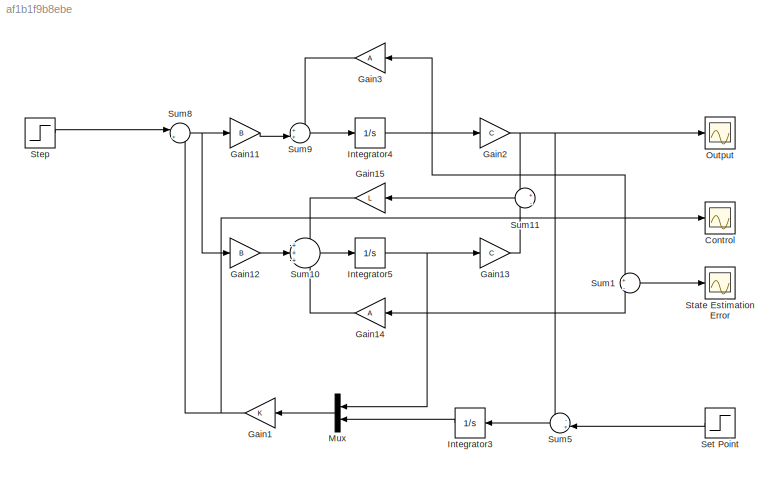
MODEL slx_af1b1f9b8ebe
KIND model
CONFIG AbsTol = auto
CONFIG EnableMultiTasking = off
CONFIG FixedStep = auto
CONFIG MaxStep = auto
CONFIG MinStep = auto
CONFIG RelTol = 1e-3
CONFIG SampleTimeConstraint = Unconstrained
CONFIG SolverName = VariableStepAuto
CONFIG StartTime = 0.0
CONFIG StopTime = 20
BLOCK [Scope] Control
  Floating = off
  NumInputPorts = 1
  ScopeSpecificationString = Simulink.scopes.TimeScopeBlockCfg('CurrentConfiguration', extmgr.ConfigurationSet(extmgr.Configuration('Core','General UI',true,'FigureColor',[1 1 1]),extmgr.Configuration('Core','Source UI',true),extmgr.Configuration('Sources','WiredSimulink',true),extmgr.Configuration('Visuals','Time Domain',true,'SerializedDisplays',{struct('MinYLimReal','-1.44349','MaxYLimReal','1.45843','YLabelReal','','MinYL...<+1371ch>
BLOCK [Gain] Gain1
  Gain = K
  Multiplication = Matrix(K*u)
  NameLocation = top
BLOCK [Gain] Gain11
  Gain = B
  Multiplication = Matrix(K*u)
BLOCK [Gain] Gain12
  Gain = B
  Multiplication = Matrix(K*u)
BLOCK [Gain] Gain13
  Gain = C
  Multiplication = Matrix(K*u)
BLOCK [Gain] Gain14
  Gain = A
  Multiplication = Matrix(K*u)
  NameLocation = top
BLOCK [Gain] Gain15
  Gain = L
  Multiplication = Matrix(K*u)
  NameLocation = top
BLOCK [Gain] Gain2
  Gain = C
  Multiplication = Matrix(K*u)
BLOCK [Gain] Gain3
  Gain = A
  Multiplication = Matrix(K*u)
  NameLocation = top
BLOCK [Integrator] Integrator3
  NameLocation = top
BLOCK [Integrator] Integrator4
BLOCK [Integrator] Integrator5
BLOCK [Mux] Mux
  DisplayOption = bar
  Inputs = 2
  NameLocation = top
BLOCK [Scope] Output
  Floating = off
  NumInputPorts = 1
  ScopeSpecificationString = Simulink.scopes.TimeScopeBlockCfg('CurrentConfiguration', extmgr.ConfigurationSet(extmgr.Configuration('Core','General UI',true,'FigureColor',[1 1 1]),extmgr.Configuration('Core','Source UI',true),extmgr.Configuration('Sources','WiredSimulink',true,'DataLoggingVariableName','ScopeData6'),extmgr.Configuration('Visuals','Time Domain',true,'SerializedDisplays',{struct('MinYLimReal','-0.36993','MaxYLi...<+1790ch>
BLOCK [Step] Set Point
  After = y_sp
  Before = [0;0;0]
  NameLocation = top
  SampleTime = 0
  Time = 0
BLOCK [Scope] State Estimation Error
  Floating = off
  NumInputPorts = 1
  ScopeSpecificationString = Simulink.scopes.TimeScopeBlockCfg('CurrentConfiguration', extmgr.ConfigurationSet(extmgr.Configuration('Core','General UI',true,'FigureColor',[1 1 1]),extmgr.Configuration('Core','Source UI',true),extmgr.Configuration('Sources','WiredSimulink',true,'DataLoggingVariableName','ScopeData1'),extmgr.Configuration('Visuals','Time Domain',true,'SerializedDisplays',{struct('MinYLimReal','-1.00000','MaxYLi...<+1652ch>
BLOCK [Step] Step
  After = w
  AttributesFormatString = disturbance
  Before = [0;0]
  SampleTime = 0
  Time = 10
BLOCK [Sum] Sum1
  Inputs = +|-
BLOCK [Sum] Sum10
  Inputs = +++
BLOCK [Sum] Sum11
  Inputs = +|-
  NameLocation = top
BLOCK [Sum] Sum5
  Inputs = -+|
  NameLocation = top
BLOCK [Sum] Sum8
  Inputs = |+-
BLOCK [Sum] Sum9
  Inputs = ++|
LINE Gain11:1 -> Sum9:2
LINE Gain12:1 -> Sum10:2
LINE Gain13:1 -> Sum11:2
LINE Gain14:1 -> Sum10:3
LINE Gain15:1 -> Sum10:1
NET Gain1:1 -> Control:1, Sum8:2
NET Gain2:1 -> Output:1, Sum11:1, Sum5:1
LINE Gain3:1 -> Sum9:1
LINE Integrator3:1 -> Mux:2
NET Integrator4:1 -> Gain2:1, Gain3:1, Sum1:1
NET Integrator5:1 -> Gain13:1, Gain14:1, Mux:1, Sum1:2
LINE Mux:1 -> Gain1:1
LINE Set Point:1 -> Sum5:2
LINE Step:1 -> Sum8:1
LINE Sum10:1 -> Integrator5:1
LINE Sum11:1 -> Gain15:1
LINE Sum1:1 -> State Estimation Error:1
LINE Sum5:1 -> Integrator3:1
NET Sum8:1 -> Gain11:1, Gain12:1
LINE Sum9:1 -> Integrator4:1
note: NET lines group one-source signal fan-out (src -> all destinations, sorted); 1:1 wires keep LINE
